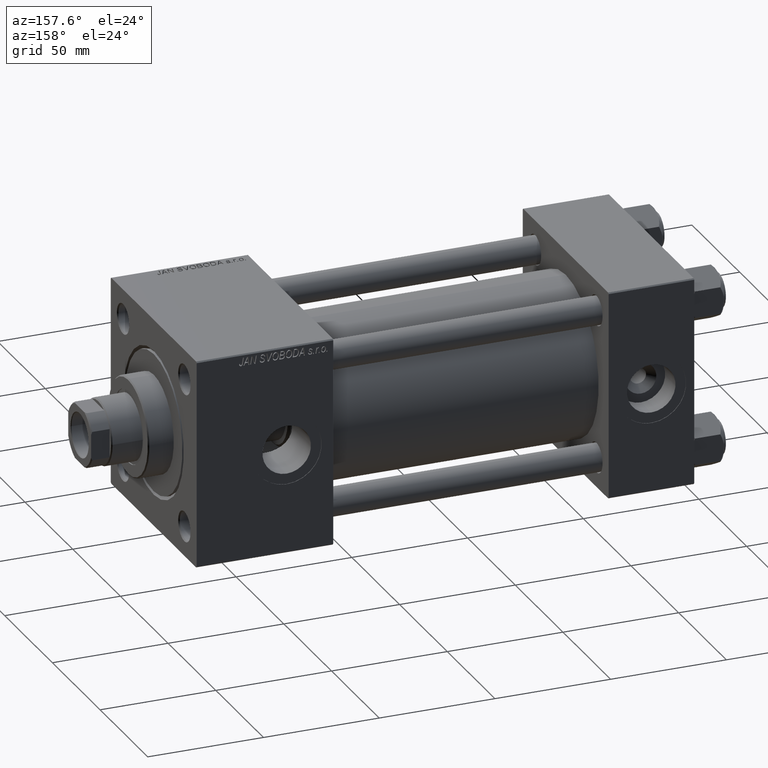
[diagram: clean part render]
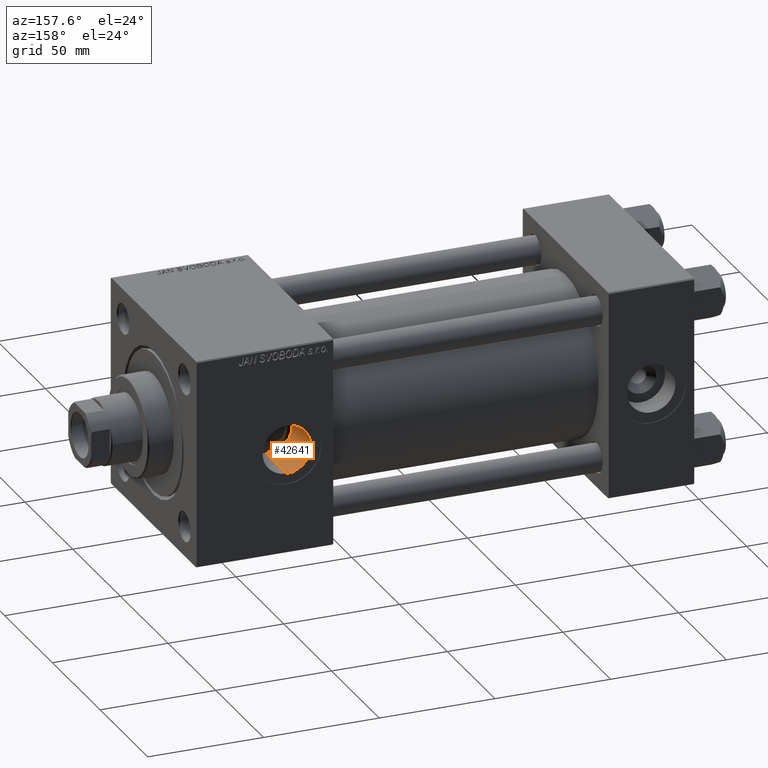
[diagram: same view with one face highlighted and labeled with its STEP entity id]
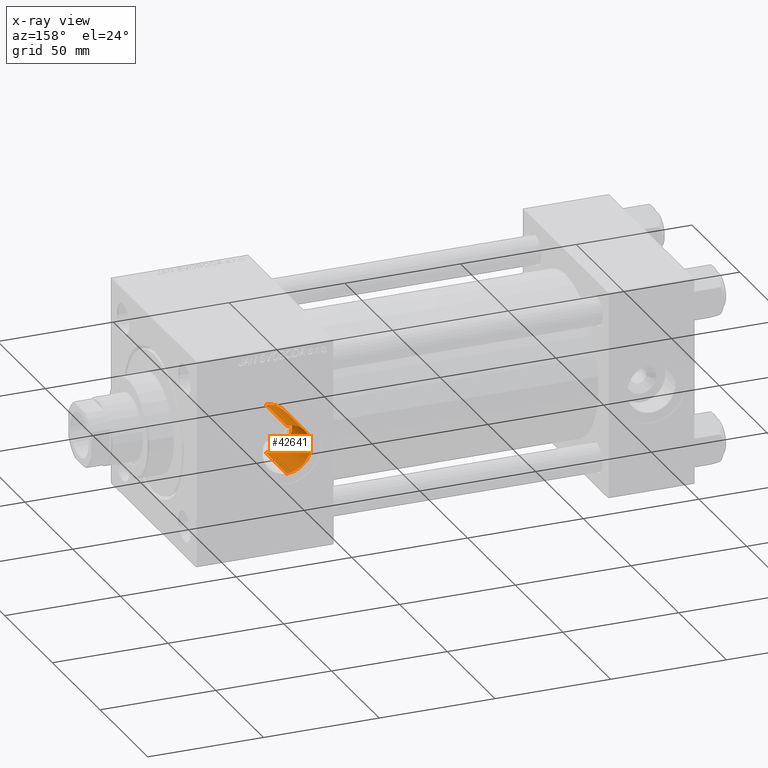
[diagram: x-ray of the same camera — body ghosted, the highlighted face saturated]
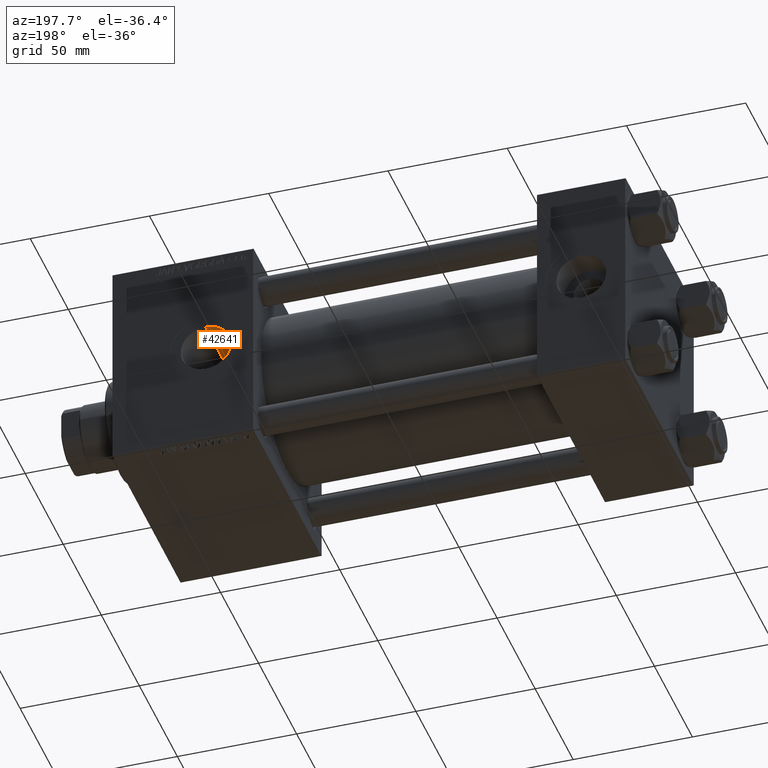
[diagram: same view with one face highlighted and labeled with its STEP entity id]
A machine part, auxiliary view. The second image highlights one B-rep face of the part: STEP entity #42641.
The next image is the same camera in x-ray: the body ghosted, the highlighted face saturated — about 0% of this face is hidden behind the body in this view.
A second angle (auxiliary view) of the same face is appended — the face is thin or edge-on in the first view.
In plain terms, the highlighted cylindrical surface (edge-blend (fillet) strip) has radius 10.48 mm, axis along (0, 1, 0).
Its self-contained STEP definition (entity closure, byte-faithful):
#909 = CARTESIAN_POINT ( 'NONE',  ( 176.0000000000000000, -29.64191626734002938, 10.47999999999998622 ) ) ;
#1263 = AXIS2_PLACEMENT_3D ( 'NONE', #10363, #47177, #26208 ) ;
#2454 = CARTESIAN_POINT ( 'NONE',  ( 167.4914286754354578, 24.23909680393989774, 6.127889787572162739 ) ) ;
#2543 = DIRECTION ( 'NONE',  ( -0.000000000000000000, 1.000000000000000000, -0.000000000000000000 ) ) ;
#2717 = CARTESIAN_POINT ( 'NONE',  ( 165.5896143113014034, 24.97059224946896450, -1.388621070306794714 ) ) ;
#2973 = CARTESIAN_POINT ( 'NONE',  ( 174.6166885166040004, 22.72945378449816545, -10.41125041824597552 ) ) ;
#6359 = CARTESIAN_POINT ( 'NONE',  ( 165.5198898269284769, 25.00004618454967087, 0.3460486699088957674 ) ) ;
#6616 = CARTESIAN_POINT ( 'NONE',  ( 174.6214610596253749, 22.72910592596696233, 10.41201292843504156 ) ) ;
#6875 = CARTESIAN_POINT ( 'NONE',  ( 166.0806528163204518, 24.77003135787058241, 3.399521362015800907 ) ) ;
#7133 = CARTESIAN_POINT ( 'NONE',  ( 169.5910252885424541, 23.57840781445655765, -8.320120710421903709 ) ) ;
#7138 = B_SPLINE_CURVE_WITH_KNOTS ( 'NONE', 3,
 ( #42743, #38338, #2973, #22218, #18324, #46639, #42228, #30528, #42991, #7133, #18591, #11289, #41980, #19100, #7380, #27124, #10777, #34941, #46126, #18847, #50773, #2717, #50009, #6359, #34171, #11041, #46380, #10525, #38071, #6875, #15196, #22742, #26622, #2454, #42487, #22481, #34423, #31045, #23000, #14424, #30273, #34680, #30787, #26366, #38857, #6616, #50264, #50516 ),
 .UNSPECIFIED., .F., .F.,
 ( 4, 2, 2, 2, 2, 2, 2, 2, 2, 2, 2, 2, 2, 2, 2, 2, 2, 2, 2, 2, 2, 2, 2, 4 ),
 ( 0.01463821909121455940, 0.01670930280020126862, 0.01774484465469462063, 0.01878038650918797611, 0.02085147021817461074, 0.02292255392716124884, 0.02395809578165453493, 0.02499363763614782102, 0.02706472134513440014, 0.02810026319962768623, 0.02913580505412097579, 0.03120688876310756532, 0.03224243061760086876, 0.03327797247209415832, 0.03431351432658745482, 0.03534905618108075132, 0.03742013989006734431, 0.03845568174456066163, 0.03949122359905397894, 0.04156230730804066215, 0.04363339101702735229, 0.04466893287152065573, 0.04570447472601396610, 0.04777555843500057298 ),
 .UNSPECIFIED. ) ;
#7380 = CARTESIAN_POINT ( 'NONE',  ( 167.4852564452334605, 24.24127047932947576, -6.119244249603038810 ) ) ;
#7712 = VERTEX_POINT ( 'NONE', #19710 ) ;
#8459 = LINE ( 'NONE', #909, #44399 ) ;
#8783 = VERTEX_POINT ( 'NONE', #10652 ) ;
#9663 = ORIENTED_EDGE ( 'NONE', *, *, #35762, .T. ) ;
#9748 = CARTESIAN_POINT ( 'NONE',  ( 176.0000000000000000, 44.80000000000000426, 10.47999999999998622 ) ) ;
#10063 = ORIENTED_EDGE ( 'NONE', *, *, #17803, .T. ) ;
#10363 = CARTESIAN_POINT ( 'NONE',  ( 176.0000000000000000, 44.80000000000000426, 0.000000000000000000 ) ) ;
#10525 = CARTESIAN_POINT ( 'NONE',  ( 165.7934469296605187, 24.88653244420935096, 2.403216301759338869 ) ) ;
#10652 = CARTESIAN_POINT ( 'NONE',  ( 176.0000000000000000, 44.80000000000000426, -10.47999999999998622 ) ) ;
#10777 = CARTESIAN_POINT ( 'NONE',  ( 166.5951675388459421, 24.56748508602188963, -4.674328070843602134 ) ) ;
#11041 = CARTESIAN_POINT ( 'NONE',  ( 165.6062911791970294, 24.96393005755822259, 1.386124428227898386 ) ) ;
#11289 = CARTESIAN_POINT ( 'NONE',  ( 168.3518897779276813, 23.95018848110602860, -7.172942060376085394 ) ) ;
#14424 = CARTESIAN_POINT ( 'NONE',  ( 170.7388075418619451, 23.29260463244820301, 9.089559278086969840 ) ) ;
#15196 = CARTESIAN_POINT ( 'NONE',  ( 166.1992050399645109, 24.72266741087924657, 3.727330997008750479 ) ) ;
#16233 = CIRCLE ( 'NONE', #1263, 10.47999999999998622 ) ;
#16274 = DIRECTION ( 'NONE',  ( -0.000000000000000000, 1.000000000000000000, -0.000000000000000000 ) ) ;
#17803 = EDGE_CURVE ( 'NONE', #8783, #33937, #16233, .T. ) ;
#18324 = CARTESIAN_POINT ( 'NONE',  ( 173.2625725609530321, 22.85946943249186347, -10.12210048819255803 ) ) ;
#18591 = CARTESIAN_POINT ( 'NONE',  ( 169.0691750376469429, 23.72760602978987521, -7.889944006337735516 ) ) ;
#18847 = CARTESIAN_POINT ( 'NONE',  ( 165.8774204008528557, 24.85211448620741237, -2.735702537687458413 ) ) ;
#19100 = CARTESIAN_POINT ( 'NONE',  ( 167.6900300022859653, 24.16988760624361277, -6.394633543806187426 ) ) ;
#19710 = CARTESIAN_POINT ( 'NONE',  ( 175.9999999999999432, 22.69734786269093618, -10.48000000000000043 ) ) ;
#21177 = EDGE_LOOP ( 'NONE', ( #37088, #9663, #10063, #31351 ) ) ;
#22218 = CARTESIAN_POINT ( 'NONE',  ( 173.6006309434185368, 22.82132339589592362, -10.20748497981748493 ) ) ;
#22481 = CARTESIAN_POINT ( 'NONE',  ( 168.1304464638024001, 24.02202805608321867, 6.929393258577144721 ) ) ;
#22742 = CARTESIAN_POINT ( 'NONE',  ( 166.5972116635182658, 24.56669364692477942, 4.678748159390218042 ) ) ;
#23000 = CARTESIAN_POINT ( 'NONE',  ( 169.5996881253370248, 23.57603182418388954, 8.326838647318266950 ) ) ;
#24213 = AXIS2_PLACEMENT_3D ( 'NONE', #43073, #2543, #30367 ) ;
#24495 = EDGE_CURVE ( 'NONE', #7712, #37976, #7138, .T. ) ;
#25569 = CARTESIAN_POINT ( 'NONE',  ( 176.0000000000000000, 22.69734786269092908, 10.47999999999998622 ) ) ;
#26208 = DIRECTION ( 'NONE',  ( 0.000000000000000000, 0.000000000000000000, 1.000000000000000000 ) ) ;
#26366 = CARTESIAN_POINT ( 'NONE',  ( 173.2628663816417998, 22.85945295365116081, 10.12213220648004253 ) ) ;
#26622 = CARTESIAN_POINT ( 'NONE',  ( 166.9205644474328665, 24.44339300292596917, 5.278250371298481625 ) ) ;
#27124 = CARTESIAN_POINT ( 'NONE',  ( 166.9171465358876674, 24.44468804556173325, -5.272058887039579034 ) ) ;
#30273 = CARTESIAN_POINT ( 'NONE',  ( 171.3377099006112871, 23.16297019228598231, 9.410509118438300291 ) ) ;
#30367 = DIRECTION ( 'NONE',  ( 0.000000000000000000, 0.000000000000000000, 1.000000000000000000 ) ) ;
#30528 = CARTESIAN_POINT ( 'NONE',  ( 171.3305262906433200, 23.16436360660826566, -9.407119406203932499 ) ) ;
#30787 = CARTESIAN_POINT ( 'NONE',  ( 172.6029776176335133, 22.94782015708122103, 9.920166318359200375 ) ) ;
#31045 = CARTESIAN_POINT ( 'NONE',  ( 169.0758525530453085, 23.72565358630829380, 7.895767310681530482 ) ) ;
#31351 = ORIENTED_EDGE ( 'NONE', *, *, #47624, .F. ) ;
#33937 = VERTEX_POINT ( 'NONE', #9748 ) ;
#34171 = CARTESIAN_POINT ( 'NONE',  ( 165.5374198107919597, 24.99268303089189303, 0.6963761674250704692 ) ) ;
#34423 = CARTESIAN_POINT ( 'NONE',  ( 168.3583976685859795, 23.94811038994632924, 7.179864457733663663 ) ) ;
#34680 = CARTESIAN_POINT ( 'NONE',  ( 172.2810024023066831, 22.99792823106281858, 9.803852027551132053 ) ) ;
#34768 = CARTESIAN_POINT ( 'NONE',  ( 176.0000000000000000, -29.64191626734002938, -10.47999999999998622 ) ) ;
#34941 = CARTESIAN_POINT ( 'NONE',  ( 166.1986316166709798, 24.72289697108949014, -3.725725694189044201 ) ) ;
#35762 = EDGE_CURVE ( 'NONE', #7712, #8783, #46217, .T. ) ;
#37088 = ORIENTED_EDGE ( 'NONE', *, *, #24495, .F. ) ;
#37976 = VERTEX_POINT ( 'NONE', #25569 ) ;
#38071 = CARTESIAN_POINT ( 'NONE',  ( 165.8779669537605628, 24.85189244119416685, 2.737634207123012420 ) ) ;
#38159 = FACE_OUTER_BOUND ( 'NONE', #21177, .T. ) ;
#38338 = CARTESIAN_POINT ( 'NONE',  ( 175.3034659601954104, 22.69734786269092552, -10.47999999999998266 ) ) ;
#38857 = CARTESIAN_POINT ( 'NONE',  ( 173.6024807966722960, 22.82111456472382116, 10.20795265357758730 ) ) ;
#41980 = CARTESIAN_POINT ( 'NONE',  ( 168.1238065727190758, 24.02420213949848815, -6.921886781690114177 ) ) ;
#42228 = CARTESIAN_POINT ( 'NONE',  ( 172.2769050068437480, 22.99857768367995803, -9.802338176841910666 ) ) ;
#42487 = CARTESIAN_POINT ( 'NONE',  ( 167.6971979191698381, 24.16742604129797911, 6.403892675369887044 ) ) ;
#42641 = ADVANCED_FACE ( 'NONE', ( #38159 ), #46983, .F. ) ;
#42743 = CARTESIAN_POINT ( 'NONE',  ( 175.9999999999999432, 22.69734786269093618, -10.48000000000000043 ) ) ;
#42991 = CARTESIAN_POINT ( 'NONE',  ( 170.7282494435933131, 23.29501474869028499, -9.083392073400743172 ) ) ;
#43073 = CARTESIAN_POINT ( 'NONE',  ( 176.0000000000000000, -29.64191626734002938, 0.000000000000000000 ) ) ;
#43149 = VECTOR ( 'NONE', #50099, 1000.000000000000000 ) ;
#44399 = VECTOR ( 'NONE', #16274, 1000.000000000000000 ) ;
#46126 = CARTESIAN_POINT ( 'NONE',  ( 166.0804400412437474, 24.77011599629385330, -3.398972836081199933 ) ) ;
#46217 = LINE ( 'NONE', #34768, #43149 ) ;
#46380 = CARTESIAN_POINT ( 'NONE',  ( 165.6576090084523969, 24.94255044980511826, 1.727461359525257034 ) ) ;
#46639 = CARTESIAN_POINT ( 'NONE',  ( 172.6000436906344078, 22.94823602494486536, -9.919209866290790600 ) ) ;
#46983 = CYLINDRICAL_SURFACE ( 'NONE', #24213, 10.47999999999998622 ) ;
#47177 = DIRECTION ( 'NONE',  ( 0.000000000000000000, 1.000000000000000000, 0.000000000000000000 ) ) ;
#47624 = EDGE_CURVE ( 'NONE', #37976, #33937, #8459, .T. ) ;
#50009 = CARTESIAN_POINT ( 'NONE',  ( 165.5202219243777506, 24.99990696930469980, -0.7020592370721140396 ) ) ;
#50099 = DIRECTION ( 'NONE',  ( -0.000000000000000000, 1.000000000000000000, -0.000000000000000000 ) ) ;
#50264 = CARTESIAN_POINT ( 'NONE',  ( 175.3073892563824927, 22.69734786269092552, 10.47999999999998799 ) ) ;
#50516 = CARTESIAN_POINT ( 'NONE',  ( 176.0000000000000000, 22.69734786269092908, 10.47999999999998622 ) ) ;
#50773 = CARTESIAN_POINT ( 'NONE',  ( 165.7929659686116111, 24.88673000804574542, -2.401115563268494846 ) ) ;